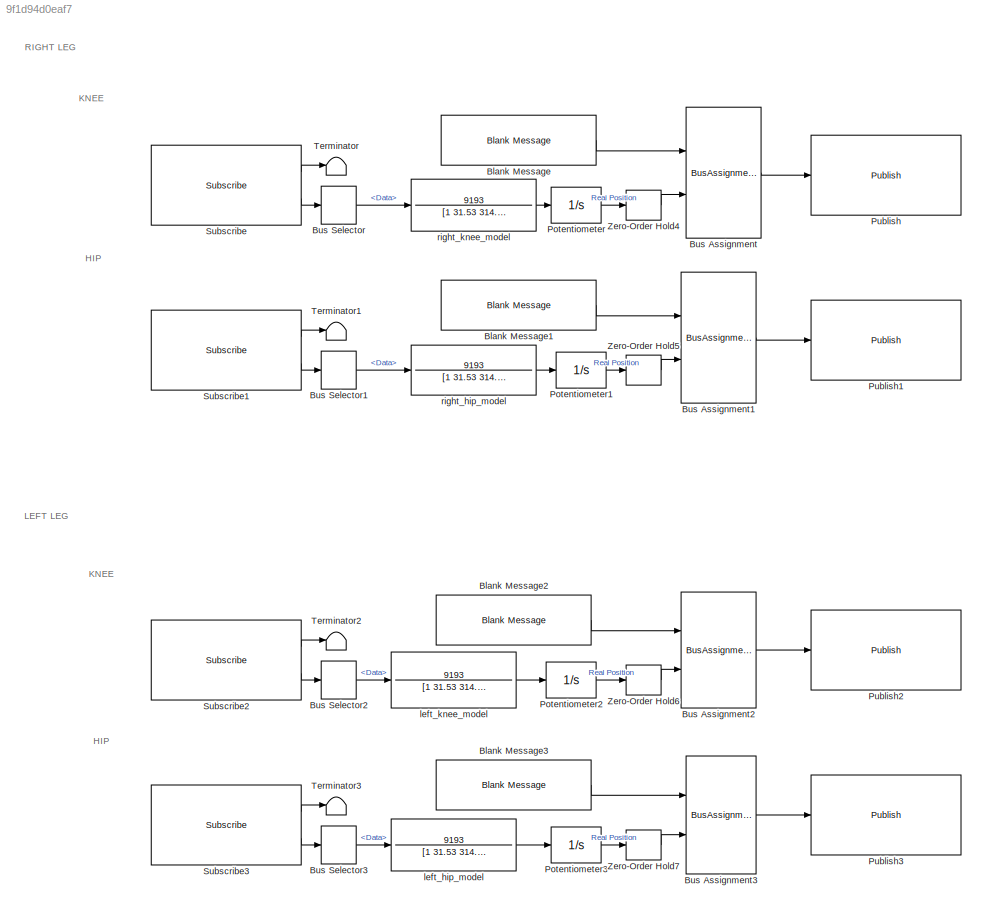
MODEL slx_9f1d94d0eaf7
KIND model
CONFIG AbsTol = auto
CONFIG EnableMultiTasking = off
CONFIG FixedStep = 0.002
CONFIG MaxStep = auto
CONFIG MinStep = auto
CONFIG RelTol = 1e-3
CONFIG SampleTimeConstraint = Unconstrained
CONFIG SolverName = FixedStepAuto
CONFIG StartTime = 0.0
CONFIG StopTime = 20
BLOCK [Reference] Blank Message  REF=robotlib/Blank Message
  Ports = [0, 1]
  SourceBlock = robotlib/Blank Message
  SourceProductBaseCode = RR
  SourceType = ROS Blank Message
BLOCK [Reference] Blank Message1  REF=robotlib/Blank Message
  Ports = [0, 1]
  SourceBlock = robotlib/Blank Message
  SourceProductBaseCode = RR
  SourceType = ROS Blank Message
BLOCK [Reference] Blank Message2  REF=robotlib/Blank Message
  Ports = [0, 1]
  SourceBlock = robotlib/Blank Message
  SourceProductBaseCode = RR
  SourceType = ROS Blank Message
BLOCK [Reference] Blank Message3  REF=robotlib/Blank Message
  Ports = [0, 1]
  SourceBlock = robotlib/Blank Message
  SourceProductBaseCode = RR
  SourceType = ROS Blank Message
BLOCK [BusAssignment] Bus Assignment
  AssignedSignals = Data
  Ports = [2, 1]
BLOCK [BusAssignment] Bus Assignment1
  AssignedSignals = Data
  Ports = [2, 1]
BLOCK [BusAssignment] Bus Assignment2
  AssignedSignals = Data
  Ports = [2, 1]
BLOCK [BusAssignment] Bus Assignment3
  AssignedSignals = Data
  Ports = [2, 1]
BLOCK [BusSelector] Bus Selector
  OutputSignals = Data
  Ports = [1, 1]
BLOCK [BusSelector] Bus Selector1
  OutputSignals = Data
  Ports = [1, 1]
BLOCK [BusSelector] Bus Selector2
  OutputSignals = Data
  Ports = [1, 1]
BLOCK [BusSelector] Bus Selector3
  OutputSignals = Data
  Ports = [1, 1]
BLOCK [Integrator] Potentiometer
  InitialCondition = 6
  Ports = [1, 1]
BLOCK [Integrator] Potentiometer1
  InitialCondition = 6
  Ports = [1, 1]
BLOCK [Integrator] Potentiometer2
  InitialCondition = 6
  Ports = [1, 1]
BLOCK [Integrator] Potentiometer3
  InitialCondition = 6
  Ports = [1, 1]
BLOCK [Reference] Publish  REF=robotlib/Publish
  Ports = [1]
  SourceBlock = robotlib/Publish
  SourceProductBaseCode = RR
  SourceType = ROS Publish
BLOCK [Reference] Publish1  REF=robotlib/Publish
  Ports = [1]
  SourceBlock = robotlib/Publish
  SourceProductBaseCode = RR
  SourceType = ROS Publish
BLOCK [Reference] Publish2  REF=robotlib/Publish
  Ports = [1]
  SourceBlock = robotlib/Publish
  SourceProductBaseCode = RR
  SourceType = ROS Publish
BLOCK [Reference] Publish3  REF=robotlib/Publish
  Ports = [1]
  SourceBlock = robotlib/Publish
  SourceProductBaseCode = RR
  SourceType = ROS Publish
BLOCK [Reference] Subscribe  REF=robotlib/Subscribe
  Ports = [0, 2]
  SourceBlock = robotlib/Subscribe
  SourceProductBaseCode = RR
  SourceType = ROS Subscribe
BLOCK [Reference] Subscribe1  REF=robotlib/Subscribe
  Ports = [0, 2]
  SourceBlock = robotlib/Subscribe
  SourceProductBaseCode = RR
  SourceType = ROS Subscribe
BLOCK [Reference] Subscribe2  REF=robotlib/Subscribe
  Ports = [0, 2]
  SourceBlock = robotlib/Subscribe
  SourceProductBaseCode = RR
  SourceType = ROS Subscribe
BLOCK [Reference] Subscribe3  REF=robotlib/Subscribe
  Ports = [0, 2]
  SourceBlock = robotlib/Subscribe
  SourceProductBaseCode = RR
  SourceType = ROS Subscribe
BLOCK [Terminator] Terminator
BLOCK [Terminator] Terminator1
BLOCK [Terminator] Terminator2
BLOCK [Terminator] Terminator3
BLOCK [ZeroOrderHold] Zero-Order Hold4
  SampleTime = 0.002
BLOCK [ZeroOrderHold] Zero-Order Hold5
  SampleTime = 0.002
BLOCK [ZeroOrderHold] Zero-Order Hold6
  SampleTime = 0.002
BLOCK [ZeroOrderHold] Zero-Order Hold7
  SampleTime = 0.002
BLOCK [TransferFcn] left_hip_model
  Denominator = [1 31.53 314.5]
  Numerator = 9193
BLOCK [TransferFcn] left_knee_model
  Denominator = [1 31.53 314.5]
  Numerator = 9193
BLOCK [TransferFcn] right_hip_model
  Denominator = [1 31.53 314.5]
  Numerator = 9193
BLOCK [TransferFcn] right_knee_model
  Denominator = [1 31.53 314.5]
  Numerator = 9193
ANNOTATION (root): HIP
ANNOTATION (root): KNEE
ANNOTATION (root): LEFT LEG
ANNOTATION (root): RIGHT LEG
LINE Blank Message1:1 -> Bus Assignment1:1
LINE Blank Message2:1 -> Bus Assignment2:1
LINE Blank Message3:1 -> Bus Assignment3:1
LINE Blank Message:1 -> Bus Assignment:1
LINE Bus Assignment1:1 -> Publish1:1
LINE Bus Assignment2:1 -> Publish2:1
LINE Bus Assignment3:1 -> Publish3:1
LINE Bus Assignment:1 -> Publish:1
LINE Bus Selector1:1 -> right_hip_model:1
LINE Bus Selector2:1 -> left_knee_model:1
LINE Bus Selector3:1 -> left_hip_model:1
LINE Bus Selector:1 -> right_knee_model:1
LINE Potentiometer1:1 -> Zero-Order Hold5:1
LINE Potentiometer2:1 -> Zero-Order Hold6:1
LINE Potentiometer3:1 -> Zero-Order Hold7:1
LINE Potentiometer:1 -> Zero-Order Hold4:1
LINE Subscribe1:1 -> Terminator1:1
LINE Subscribe1:2 -> Bus Selector1:1
LINE Subscribe2:1 -> Terminator2:1
LINE Subscribe2:2 -> Bus Selector2:1
LINE Subscribe3:1 -> Terminator3:1
LINE Subscribe3:2 -> Bus Selector3:1
LINE Subscribe:1 -> Terminator:1
LINE Subscribe:2 -> Bus Selector:1
LINE Zero-Order Hold4:1 -> Bus Assignment:2
LINE Zero-Order Hold5:1 -> Bus Assignment1:2
LINE Zero-Order Hold6:1 -> Bus Assignment2:2
LINE Zero-Order Hold7:1 -> Bus Assignment3:2
LINE left_hip_model:1 -> Potentiometer3:1
LINE left_knee_model:1 -> Potentiometer2:1
LINE right_hip_model:1 -> Potentiometer1:1
LINE right_knee_model:1 -> Potentiometer:1
